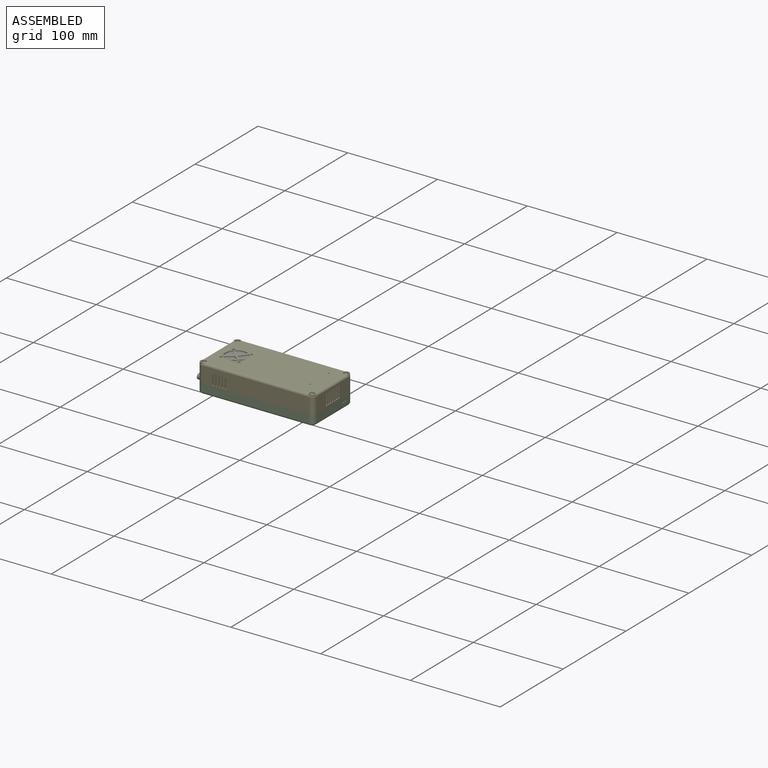
[diagram: assembled view]
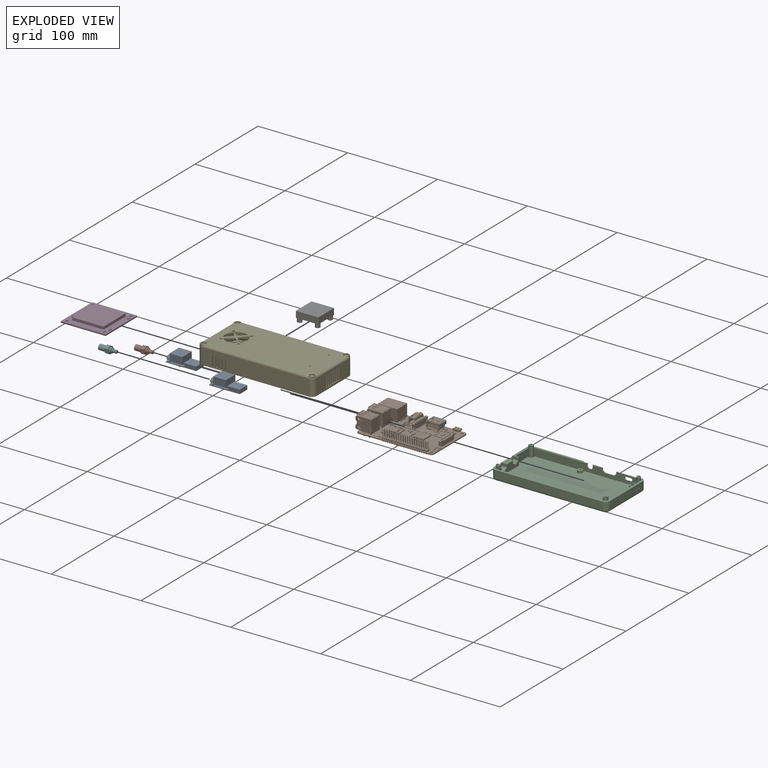
[diagram: exploded view]
GUIDED TOUR — MATED ASSEMBLY (Onshape document 8c34c1c767a49570ccc6db5e, AutoMate assembly 8c34c1c767a49570ccc6db5e_f70d51597f26a37813e1e88d_69d6b03f9e97eedcf7e0efff_default)

This assembly has 9 components, labeled P0..P8 below (a component is one placed occurrence of a part; the same part can appear more than once), held together by 20 mates. A mate is a constraint between two components; its type names the relative motion it leaves free:
  CYLINDRICAL — leaves both rotation about and translation along the listed axis free,
  PLANAR — leaves sliding in the plane through the listed point (normal = the listed direction) and rotation about that normal free.
Axis/direction vectors are unit vectors and 'through' points are millimeter coordinates, both in the assembly's world frame.

MATES
  1. PLANAR "Planar 13": P6 <-> P4, direction (0.000, 0.000, 1.000) through (-70.12, -5.59, 26.29) mm
  2. PLANAR "Planar 11": P4 <-> P2, direction (0.000, -1.000, 0.000) through (-25.44, -36.59, 16.27) mm
  3. PLANAR "Planar 12": P4 <-> P2, direction (1.000, 0.000, 0.000) through (37.38, -31.59, 16.17) mm
  4. CYLINDRICAL "Cylindrical 6": P6 <-> P4, axis (0.000, 0.000, 1.000) through (-60.12, -15.59, 17.20) mm
  5. CYLINDRICAL "Cylindrical 4": P7 <-> P8, axis (-1.000, 0.000, 0.000) through (-79.45, -6.59, 6.64) mm
  6. PLANAR "Planar 14": P4 <-> P2, direction (0.000, 0.000, -1.000) through (-7.43, -21.85, 7.29) mm
  7. PLANAR "Planar 1": P1 <-> P0, direction (-1.000, 0.000, 0.000) through (-46.70, -21.19, 4.09) mm
  8. PLANAR "Planar 4": P1 <-> P2, direction (0.000, 0.000, 1.000) through (-12.12, 22.41, 1.29) mm
  9. CYLINDRICAL "Cylindrical 3": P0 <-> P5, axis (1.000, 0.000, 0.000) through (-74.30, -24.59, 6.64) mm
  10. CYLINDRICAL "Cylindrical 2": P2 <-> P1, axis (0.000, 0.000, 1.000) through (-31.12, -30.09, 1.29) mm
  11. CYLINDRICAL "Cylindrical 5": P4 <-> P3, axis (0.000, 0.000, -1.000) through (-23.12, -23.59, 22.54) mm
  12. PLANAR "Planar 9": P8 <-> P7, direction (-1.000, 0.000, 0.000) through (-83.70, -6.59, 6.66) mm
  13. PLANAR "Planar 7": P8 <-> P1, direction (0.000, -1.000, 0.000) through (-55.50, -12.59, 6.36) mm
  14. CYLINDRICAL "Cylindrical 1": P2 <-> P1, axis (0.000, 0.000, 1.000) through (26.88, 18.91, 1.29) mm
  15. PLANAR "Planar 3": P0 <-> P1, direction (0.000, -1.000, 0.000) through (-55.50, -30.59, 6.36) mm
  16. PLANAR "Planar 10": P3 <-> P4, direction (0.000, 0.000, 1.000) through (-19.62, -2.59, 22.54) mm
  17. PLANAR "Planar 6": P8 <-> P0, direction (-1.000, 0.000, 0.000) through (-62.70, -6.72, 7.51) mm
  18. PLANAR "Planar 5": P0 <-> P8, direction (0.000, 0.000, 1.000) through (-62.70, -24.59, 8.59) mm
  19. PLANAR "Planar 2": P0 <-> P1, direction (0.000, 0.000, 1.000) through (-55.70, -24.59, 8.59) mm
  20. PLANAR "Planar 8": P0 <-> P5, direction (-1.000, 0.000, 0.000) through (-83.70, -26.13, 9.14) mm

ASSEMBLY ORDER
  1. P0 — the base component [order heuristic]
  2. P8 — core [order heuristic]
  3. P7 — core [order heuristic]
  4. P5 — core [order heuristic]
  5. P4 [order verified]
  6. P1 — core [order heuristic]
  7. P2 — core [order heuristic]
  8. P3 [order verified]
  9. P6 [order verified]
(P4 verified with a relaxed clearance tolerance: the source model stores slight part interference there.)
Order-tag legend:
  [order verified] — this step's position reverses a verified removal order: the component was checked to insert without passing through the ones already placed.
  [order heuristic] — the first 6 components form the assembly's core: parts whose collision-free extraction could not be verified, listed in mate-graph order.

Of the 9 components, 2 carry the full construction recipe — the FeatureScript program that regenerates the part's solid from scratch; the rest are supplied as boundary geometry only.
Each toured component is shown spotlighted twice — in the assembled view, then in the exploded view, where a leader line traces a displaced component back to its assembled socket (saturated green if recipe-attached, orange if geometry-only; every other component desaturated gray) — followed by its recipe or geometry summary and the mates that hold it.
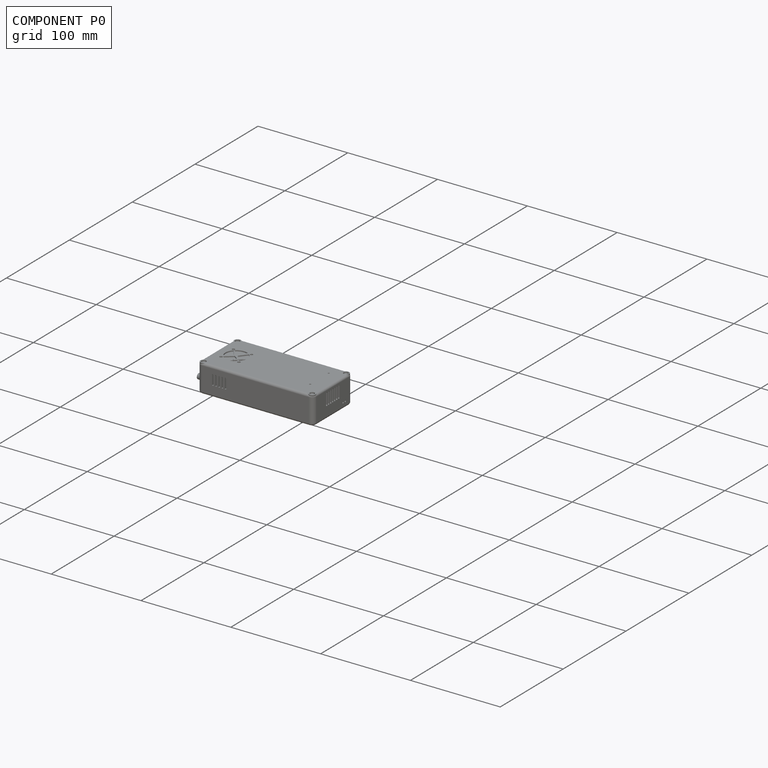
[diagram: component P0 — assembled]
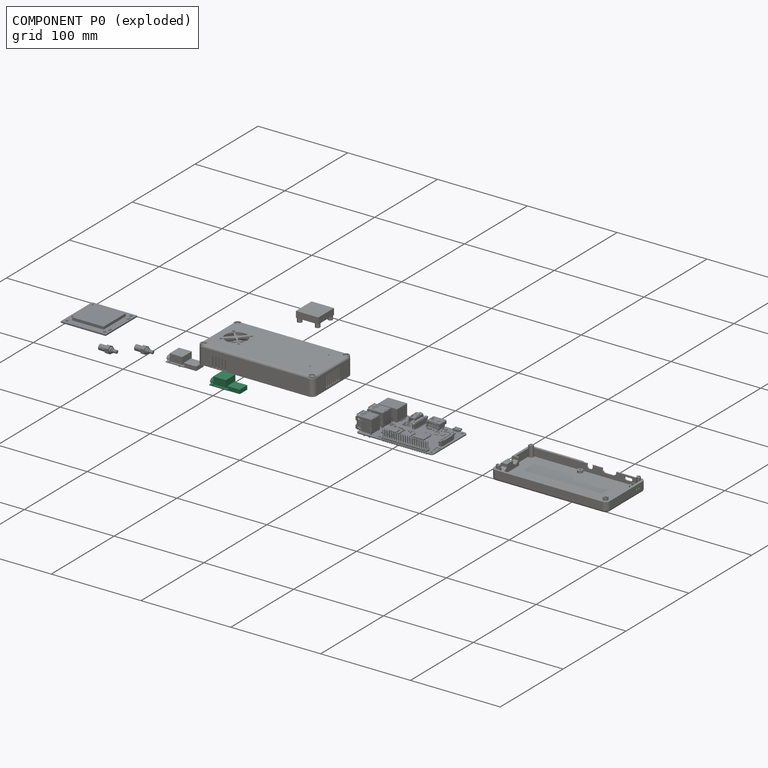
[diagram: component P0 — exploded]
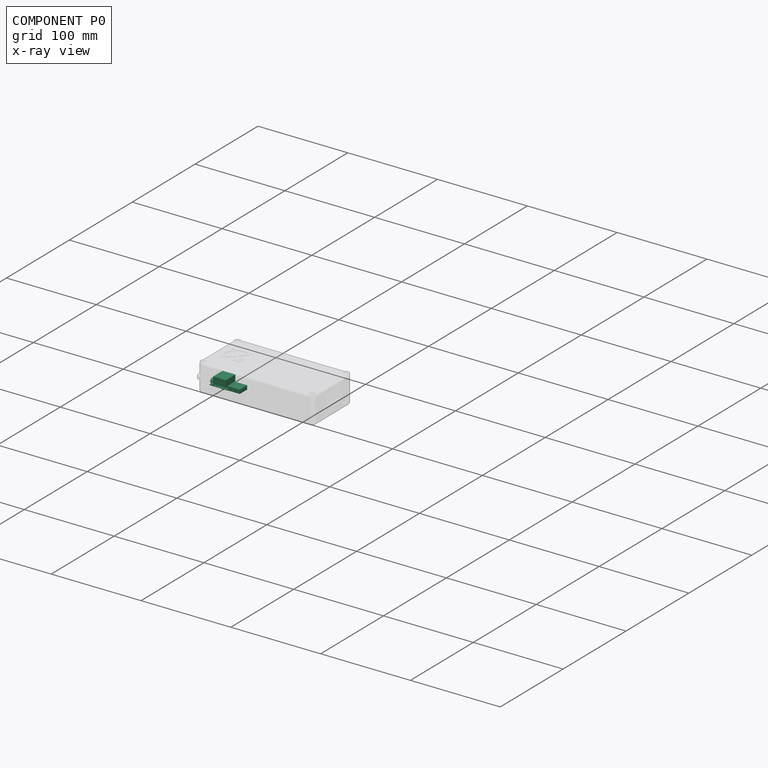
[diagram: component P0 — x-ray view]
COMPONENT P0 — recipe-attached (CADFS 00898889, mesh-verified: the recipe's output STEP matches this component's geometry to below the mesh-comparison resolution (tessellation chordal tolerance ~0.0602 mm)).
Held by: PLANAR mate "Planar 1" to P1; CYLINDRICAL mate "Cylindrical 3" to P5; PLANAR mate "Planar 3" to P1; PLANAR mate "Planar 6" to P8; PLANAR mate "Planar 5" to P8; PLANAR mate "Planar 2" to P1; PLANAR mate "Planar 8" to P5.
Construction recipe (FeatureScript — the CAD program that rebuilds this solid; sketch coordinates are in the units given by the * unit suffixes, e.g. mm):

FeatureScript 1511;
import(path : "onshape/std/geometry.fs", version : "1511.0");
import(path : "onshape/std/common.fs", version : "1511.0");
const mm = millimeter;
const VERTEX = EntityType.VERTEX;
const EDGE = EntityType.EDGE;
const FACE = EntityType.FACE;
const BODY = EntityType.BODY;
function v(x, y){return vector(x, y);}
function OD(order){return orderDisambiguation(order);}
function OSD(set){return originalSetDisambiguation(set);}
function TD(topology){return topologyDisambiguation(topology);}
function TDD(query){return trueDependencyDisambiguation(query);}
function sQuery(a, b, c) {return sketchEntityQuery(a, b, c);}

annotation { "Feature Type Name" : "Feature", "Feature Type Description" : "" }
export const myFeature = defineFeature(function(context is Context, id is Id, definition is map)
    precondition{}
    {
        {
            var Q0;
            Q0=qCreatedBy(makeId("Top.planeOp"),FACE);
            var sketch = newSketch(context, id + "F0", { "sketchPlane" : qUnion([Q0])});
            skLineSegment(sketch, "E0.bottom", {"start": v(10.2, -8.1) * mm, "end": v(-10.2, -8.1) * mm});
            skLineSegment(sketch, "E0.top", {"start": v(10.2, 8.1) * mm, "end": v(-10.2, 8.1) * mm});
            skLineSegment(sketch, "E0.left", {"start": v(10.2, -8.1) * mm, "end": v(10.2, 8.1) * mm});
            skLineSegment(sketch, "E0.right", {"start": v(-10.2, -8.1) * mm, "end": v(-10.2, 8.1) * mm});
            skPoint(sketch, "E0.middle", {"position": v(0, 0) * mm});
            skSolve(sketch);
        }
        {
            var Q0;
            Q0=makeQuery(id+"F0.imprint","IMPRINT",FACE,{"disambiguationData":[TD([[makeQuery(id+"F0.imprint","IMPRINT",EDGE,{"derivedFrom":sQuery(id+"F0.wireOp",EDGE,"E0.bottom")}),-1.0]])]});
            extrude(context, id + "F1", {"entities" : qUnion([Q0]), "oppositeDirection" : true, "depth" : 1 * mm});
        }
        {
            var Q0;
            Q0=makeQuery(id+"F1.opExtrude","SWEPT_FACE",FACE,{"disambiguationData":[OSD([sQuery(id+"F0.wireOp",EDGE,"E0.right")])]});
            var sketch = newSketch(context, id + "F2", { "sketchPlane" : qUnion([Q0])});
            skLineSegment(sketch, "E1.bottom", {"start": v(6, -2.05) * mm, "end": v(-6, -2.05) * mm});
            skLineSegment(sketch, "E1.top", {"start": v(6, 2.45) * mm, "end": v(-6, 2.45) * mm});
            skLineSegment(sketch, "E1.left", {"start": v(6, -2.05) * mm, "end": v(6, 2.45) * mm});
            skLineSegment(sketch, "E1.right", {"start": v(-6, -2.05) * mm, "end": v(-6, 2.45) * mm});
            skPoint(sketch, "E1.middle", {"position": v(0, 0.2) * mm});
            skSolve(sketch);
        }
        {
            var Q0;
            Q0=qSketchRegion(id+"F2",true);
            extrude(context, id + "F3", {"entities" : qUnion([Q0]), "operationType" : NewBodyOperationType.ADD, "depth" : 12 * mm, "hasSecondDirection" : true, "secondDirectionOppositeDirection" : true, "secondDirectionDepth" : 2 * mm});
        }
        {
            var Q0;
            Q0=makeQuery(id+"F1.opExtrude","SWEPT_FACE",FACE,{"disambiguationData":[OSD([sQuery(id+"F0.wireOp",EDGE,"E0.left")])]});
            var sketch = newSketch(context, id + "F4", { "sketchPlane" : qUnion([Q0])});
            skLineSegment(sketch, "E2.top", {"start": v(-2.35, -2) * mm, "end": v(2.35, -2) * mm});
            skLineSegment(sketch, "E2.left", {"start": v(-2.35, 0) * mm, "end": v(-2.35, -2) * mm});
            skLineSegment(sketch, "E2.right", {"start": v(2.35, 0) * mm, "end": v(2.35, -2) * mm});
            skLineSegment(sketch, "E3", {"start": v(0, 0) * mm, "end": v(0, 1.3) * mm, "construction": true});
            skPoint(sketch, "E3.endSnap0", {"position": v(0, 0) * mm});
            skLineSegment(sketch, "E4", {"start": v(-2.35, 0) * mm, "end": v(-3.37, 0) * mm});
            skLineSegment(sketch, "E5", {"start": v(2.35, 0) * mm, "end": v(3.38, 0) * mm});
            skArc(sketch, "E6", {"start": v(3.38, 0) * mm, "mid": v(2.88, 1.76) * mm, "end": v(1.55, 3) * mm});
            skLineSegment(sketch, "E7", {"start": v(-1.55, 3) * mm, "end": v(1.55, 3) * mm});
            skArc(sketch, "E8.trimOffspring", {"start": v(-1.55, 3) * mm, "mid": v(-2.88, 1.76) * mm, "end": v(-3.37, 0) * mm});
            skSolve(sketch);
        }
        {
            var Q0;
            {var subQ0=sQuery(id+"F4.wireOp",EDGE,"E2.top");Q0=makeQuery(id+"F4.imprint","IMPRINT",FACE,{"disambiguationData":[TD([[makeQuery(id+"F4.imprint","IMPRINT",EDGE,{"derivedFrom":subQ0}),1.0]])]});}
            var Q1;
            {var subQ0=sQuery(id+"F4.wireOp",EDGE,"E2.left");var subQ1=sQuery(id+"F0.wireOp",EDGE,"E0.left");var subQ4=makeQuery(id+"F1.opExtrude","CAP_EDGE",EDGE,{"disambiguationData":[OSD([subQ1])],"isStart":false});var subQ5=makeQuery(id+"F4.imprint","INTERSECT",VERTEX,{"derivedFrom":[subQ4,subQ0]});Q1=makeQuery(id+"F4.imprint","IMPRINT",FACE,{"disambiguationData":[TD([[makeQuery(id+"F4.imprint","IMPRINT",EDGE,{"disambiguationData":[TD([[subQ5,-1.0]])],"derivedFrom":subQ4}),1.0]])]});}
            var Q2;
            {var subQ1=sQuery(id+"F4.wireOp",EDGE,"E4");Q2=makeQuery(id+"F4.imprint","IMPRINT",FACE,{"disambiguationData":[TD([[makeQuery(id+"F4.imprint","IMPRINT",EDGE,{"derivedFrom":subQ1}),1.0]])]});}
            extrude(context, id + "F5", {"entities" : qUnion([Q0, Q1, Q2]), "operationType" : NewBodyOperationType.ADD, "depth" : 2.6 * mm, "hasSecondDirection" : true, "secondDirectionOppositeDirection" : true, "secondDirectionDepth" : (6.4 - 2.6) * mm});
        }
        {
            var Q0;
            {var subQ0=sQuery(id+"F4.wireOp",EDGE,"E6");var subQ1=sQuery(id+"F4.wireOp",EDGE,"E7");var subQ2=sQuery(id+"F4.wireOp",EDGE,"E8.trimOffspring");Q0=makeQuery(id+"F5.boolean.opBoolean","SPLIT",FACE,{"disambiguationData":[TD([makeQuery(id+"F5.opExtrude","SWEPT_FACE",FACE,{"disambiguationData":[OSD([subQ0])]})])],"derivedFrom":makeQuery(id+"F5.opExtrude","CAP_FACE",FACE,{"disambiguationData":[OSD([sQuery(id+"F4.wireOp",EDGE,"E2.top"),sQuery(id+"F4.wireOp",EDGE,"E2.left"),sQuery(id+"F4.wireOp",EDGE,"E2.right"),sQuery(id+"F4.wireOp",EDGE,"E4"),sQuery(id+"F4.wireOp",EDGE,"E5"),subQ0,subQ1,subQ2])],"isStart":true})});}
            var sketch = newSketch(context, id + "F6", { "sketchPlane" : qUnion([Q0])});
            skCircle(sketch, "E9", {"center": v(0, 0.5) * mm, "radius": 0.45 * mm});
            skLineSegment(sketch, "E10.0.0", {"start": v(2.35, 0) * mm, "end": v(2.35, -2) * mm, "construction": true});
            skLineSegment(sketch, "E10.0.1", {"start": v(2.35, -2) * mm, "end": v(-2.35, -2) * mm, "construction": true});
            skLineSegment(sketch, "E10.0.2", {"start": v(-2.35, -2) * mm, "end": v(-2.35, 0) * mm, "construction": true});
            skLineSegment(sketch, "E10.0.3", {"start": v(-2.35, 0) * mm, "end": v(-3.38, 0) * mm, "construction": true});
            skArc(sketch, "E10.0.4", {"start": v(-3.38, 0) * mm, "mid": v(-2.88, 1.76) * mm, "end": v(-1.55, 3) * mm, "construction": true});
            skLineSegment(sketch, "E10.0.5", {"start": v(-1.55, 3) * mm, "end": v(1.55, 3) * mm, "construction": true});
            skArc(sketch, "E10.0.6", {"start": v(1.55, 3) * mm, "mid": v(2.88, 1.76) * mm, "end": v(3.37, 0) * mm, "construction": true});
            skLineSegment(sketch, "E10.0.7", {"start": v(3.37, 0) * mm, "end": v(2.35, 0) * mm, "construction": true});
            skCircle(sketch, "E11", {"center": v(0, 0.5) * mm, "radius": 1.73 * mm, "construction": true});
            skLineSegment(sketch, "E12", {"start": v(2.4, 0.5) * mm, "end": v(-2.45, 0.5) * mm, "construction": true});
            skSolve(sketch);
        }
        {
            var Q0;
            Q0=qSketchRegion(id+"F6",true);
            extrude(context, id + "F7", {"entities" : qUnion([Q0]), "operationType" : NewBodyOperationType.ADD, "depth" : 3 * mm});
        }
        {
            var Q0;
            Q0=makeQuery(id+"F1.opExtrude","CAP_FACE",FACE,{"disambiguationData":[OSD([sQuery(id+"F0.wireOp",EDGE,"E0.bottom"),sQuery(id+"F0.wireOp",EDGE,"E0.top"),sQuery(id+"F0.wireOp",EDGE,"E0.left"),sQuery(id+"F0.wireOp",EDGE,"E0.right")])],"isStart":true});
            var sketch = newSketch(context, id + "F8", { "sketchPlane" : qUnion([Q0])});
            skLineSegment(sketch, "E13.bottom", {"start": v(-9.1, 2.05) * mm, "end": v(-3.5, 2.05) * mm});
            skLineSegment(sketch, "E13.top", {"start": v(-9.1, -3.55) * mm, "end": v(-3.5, -3.55) * mm});
            skLineSegment(sketch, "E13.left", {"start": v(-9.1, 2.05) * mm, "end": v(-9.1, -3.55) * mm});
            skLineSegment(sketch, "E13.right", {"start": v(-3.5, 2.05) * mm, "end": v(-3.5, -3.55) * mm});
            skSolve(sketch);
        }
        {
            var Q0;
            Q0=qSketchRegion(id+"F8",true);
            extrude(context, id + "F9", {"entities" : qUnion([Q0]), "operationType" : NewBodyOperationType.ADD, "depth" : .8 * mm});
        }
        {
            var Q0;
            Q0=makeQuery(id+"F1.opExtrude","CAP_FACE",FACE,{"disambiguationData":[OSD([sQuery(id+"F0.wireOp",EDGE,"E0.bottom"),sQuery(id+"F0.wireOp",EDGE,"E0.top"),sQuery(id+"F0.wireOp",EDGE,"E0.left"),sQuery(id+"F0.wireOp",EDGE,"E0.right")])],"isStart":true});
            var sketch = newSketch(context, id + "F10", { "sketchPlane" : qUnion([Q0])});
            skLineSegment(sketch, "E14.bottom", {"start": v(0.15, -2.1) * mm, "end": v(4.15, -2.1) * mm});
            skLineSegment(sketch, "E14.top", {"start": v(0.15, -6.1) * mm, "end": v(4.15, -6.1) * mm});
            skLineSegment(sketch, "E14.left", {"start": v(0.15, -2.1) * mm, "end": v(0.15, -6.1) * mm});
            skLineSegment(sketch, "E14.right", {"start": v(4.15, -2.1) * mm, "end": v(4.15, -6.1) * mm});
            skSolve(sketch);
        }
        {
            var Q0;
            Q0=qSketchRegion(id+"F10",true);
            extrude(context, id + "F11", {"entities" : qUnion([Q0]), "operationType" : NewBodyOperationType.ADD, "depth" : .8 * mm});
        }
        {
            var Q0;
            Q0=makeQuery(id+"F1.opExtrude","CAP_FACE",FACE,{"disambiguationData":[OSD([sQuery(id+"F0.wireOp",EDGE,"E0.bottom"),sQuery(id+"F0.wireOp",EDGE,"E0.top"),sQuery(id+"F0.wireOp",EDGE,"E0.left"),sQuery(id+"F0.wireOp",EDGE,"E0.right")])],"isStart":true});
            var sketch = newSketch(context, id + "F12", { "sketchPlane" : qUnion([Q0])});
            skLineSegment(sketch, "E15.bottom", {"start": v(-6.4, 5.6) * mm, "end": v(-4.4, 5.6) * mm});
            skLineSegment(sketch, "E15.top", {"start": v(-6.4, 4.35) * mm, "end": v(-4.4, 4.35) * mm});
            skLineSegment(sketch, "E15.left", {"start": v(-6.4, 5.6) * mm, "end": v(-6.4, 4.35) * mm});
            skLineSegment(sketch, "E15.right", {"start": v(-4.4, 5.6) * mm, "end": v(-4.4, 4.35) * mm});
            skSolve(sketch);
        }
        {
            var Q0;
            Q0=qSketchRegion(id+"F12",true);
            extrude(context, id + "F13", {"entities" : qUnion([Q0]), "operationType" : NewBodyOperationType.ADD, "depth" : 1.25 * mm});
        }
        {
            var Q0;
            Q0=makeQuery(id+"F12.imprint","IMPRINT",FACE,{"disambiguationData":[TD([[makeQuery(id+"F12.imprint","IMPRINT",EDGE,{"derivedFrom":sQuery(id+"F12.wireOp",EDGE,"E15.bottom")}),1.0]])]});
            var sketch = newSketch(context, id + "F14", { "sketchPlane" : qUnion([Q0])});
            skLineSegment(sketch, "E16.bottom", {"start": v(7.4, 4.6) * mm, "end": v(6.15, 4.6) * mm});
            skLineSegment(sketch, "E16.top", {"start": v(7.4, 7.6) * mm, "end": v(6.15, 7.6) * mm});
            skLineSegment(sketch, "E16.left", {"start": v(7.4, 4.6) * mm, "end": v(7.4, 7.6) * mm});
            skLineSegment(sketch, "E16.right", {"start": v(6.15, 4.6) * mm, "end": v(6.15, 7.6) * mm});
            skSolve(sketch);
        }
        {
            var Q0;
            Q0=qSketchRegion(id+"F14",true);
            extrude(context, id + "F15", {"entities" : qUnion([Q0]), "operationType" : NewBodyOperationType.ADD, "depth" : 1 * mm});
        }
        {
            var Q0;
            Q0=makeQuery(id+"F1.opExtrude","CAP_FACE",FACE,{"disambiguationData":[OSD([sQuery(id+"F0.wireOp",EDGE,"E0.bottom"),sQuery(id+"F0.wireOp",EDGE,"E0.top"),sQuery(id+"F0.wireOp",EDGE,"E0.left"),sQuery(id+"F0.wireOp",EDGE,"E0.right")])],"isStart":false});
            var sketch = newSketch(context, id + "F16", { "sketchPlane" : qUnion([Q0])});
            skLineSegment(sketch, "E17.bottom", {"start": v(1.55, -5.1) * mm, "end": v(-0.45, -5.1) * mm});
            skLineSegment(sketch, "E17.top", {"start": v(1.55, -3.85) * mm, "end": v(-0.45, -3.85) * mm});
            skLineSegment(sketch, "E17.left", {"start": v(1.55, -5.1) * mm, "end": v(1.55, -3.85) * mm});
            skLineSegment(sketch, "E17.right", {"start": v(-0.45, -5.1) * mm, "end": v(-0.45, -3.85) * mm});
            skLineSegment(sketch, "E18.bottom", {"start": v(-2.65, -2.1) * mm, "end": v(-3.9, -2.1) * mm});
            skLineSegment(sketch, "E18.top", {"start": v(-2.65, -0.1) * mm, "end": v(-3.9, -0.1) * mm});
            skLineSegment(sketch, "E18.left", {"start": v(-2.65, -2.1) * mm, "end": v(-2.65, -0.1) * mm});
            skLineSegment(sketch, "E18.right", {"start": v(-3.9, -2.1) * mm, "end": v(-3.9, -0.1) * mm});
            skLineSegment(sketch, "E19.bottom", {"start": v(-0.15, 5.1) * mm, "end": v(-1.4, 5.1) * mm});
            skLineSegment(sketch, "E19.top", {"start": v(-0.15, 7.1) * mm, "end": v(-1.4, 7.1) * mm});
            skLineSegment(sketch, "E19.left", {"start": v(-0.15, 5.1) * mm, "end": v(-0.15, 7.1) * mm});
            skLineSegment(sketch, "E19.right", {"start": v(-1.4, 5.1) * mm, "end": v(-1.4, 7.1) * mm});
            skSolve(sketch);
        }
        {
            var Q0;
            Q0=qSketchRegion(id+"F16",true);
            extrude(context, id + "F17", {"entities" : qUnion([Q0]), "operationType" : NewBodyOperationType.ADD, "depth" : 1.25 * mm});
        }
        {
            var Q0;
            Q0=makeQuery(id+"F1.opExtrude","CAP_FACE",FACE,{"disambiguationData":[OSD([sQuery(id+"F0.wireOp",EDGE,"E0.bottom"),sQuery(id+"F0.wireOp",EDGE,"E0.top"),sQuery(id+"F0.wireOp",EDGE,"E0.left"),sQuery(id+"F0.wireOp",EDGE,"E0.right")])],"isStart":false});
            var sketch = newSketch(context, id + "F18", { "sketchPlane" : qUnion([Q0])});
            skLineSegment(sketch, "E20.bottom", {"start": v(-3.35, -7.2) * mm, "end": v(-4.95, -7.2) * mm});
            skLineSegment(sketch, "E20.top", {"start": v(-3.35, -4.2) * mm, "end": v(-4.95, -4.2) * mm});
            skLineSegment(sketch, "E20.left", {"start": v(-3.35, -7.2) * mm, "end": v(-3.35, -4.2) * mm});
            skLineSegment(sketch, "E20.right", {"start": v(-4.95, -7.2) * mm, "end": v(-4.95, -4.2) * mm});
            skLineSegment(sketch, "E21.bottom", {"start": v(-3.1, 4.7) * mm, "end": v(-4.7, 4.7) * mm});
            skLineSegment(sketch, "E21.top", {"start": v(-3.1, 7.7) * mm, "end": v(-4.7, 7.7) * mm});
            skLineSegment(sketch, "E21.left", {"start": v(-3.1, 4.7) * mm, "end": v(-3.1, 7.7) * mm});
            skLineSegment(sketch, "E21.right", {"start": v(-4.7, 4.7) * mm, "end": v(-4.7, 7.7) * mm});
            skSolve(sketch);
        }
        {
            var Q0;
            Q0=qSketchRegion(id+"F18",true);
            extrude(context, id + "F19", {"entities" : qUnion([Q0]), "operationType" : NewBodyOperationType.ADD, "depth" : 1.15 * mm});
        }
        {
            var Q0;
            Q0=makeQuery(id+"F1.opExtrude","CAP_FACE",FACE,{"disambiguationData":[OSD([sQuery(id+"F0.wireOp",EDGE,"E0.bottom"),sQuery(id+"F0.wireOp",EDGE,"E0.top"),sQuery(id+"F0.wireOp",EDGE,"E0.left"),sQuery(id+"F0.wireOp",EDGE,"E0.right")])],"isStart":false});
            var sketch = newSketch(context, id + "F20", { "sketchPlane" : qUnion([Q0])});
            skLineSegment(sketch, "E22.bottom", {"start": v(8.3, -5.77) * mm, "end": v(4.05, -5.77) * mm});
            skLineSegment(sketch, "E22.top", {"start": v(8.3, -2.77) * mm, "end": v(4.05, -2.77) * mm});
            skLineSegment(sketch, "E22.left", {"start": v(8.3, -5.77) * mm, "end": v(8.3, -2.77) * mm});
            skLineSegment(sketch, "E22.right", {"start": v(4.05, -5.77) * mm, "end": v(4.05, -2.77) * mm});
            skSolve(sketch);
        }
        {
            var Q0;
            Q0=qSketchRegion(id+"F20",true);
            extrude(context, id + "F21", {"entities" : qUnion([Q0]), "operationType" : NewBodyOperationType.ADD, "depth" : 1.15 * mm});
        }
        {
            var Q0;
            Q0=makeQuery(id+"F9.opExtrude","CAP_FACE",FACE,{"disambiguationData":[OSD([sQuery(id+"F8.wireOp",EDGE,"E13.bottom"),sQuery(id+"F8.wireOp",EDGE,"E13.top"),sQuery(id+"F8.wireOp",EDGE,"E13.left"),sQuery(id+"F8.wireOp",EDGE,"E13.right")])],"isStart":false});
            var sketch = newSketch(context, id + "F22", { "sketchPlane" : qUnion([Q0])});
            skLineSegment(sketch, "E23.bottom", {"start": v(-7.85, 7.5) * mm, "end": v(6.4, 7.5) * mm});
            skLineSegment(sketch, "E23.top", {"start": v(-7.85, -7.5) * mm, "end": v(6.4, -7.5) * mm});
            skLineSegment(sketch, "E23.left", {"start": v(-7.85, 7.5) * mm, "end": v(-7.85, -7.5) * mm});
            skLineSegment(sketch, "E23.right", {"start": v(6.4, 7.5) * mm, "end": v(6.4, -7.5) * mm});
            skLineSegment(sketch, "E24", {"start": v(12.8, 0) * mm, "end": v(-17.3, 0) * mm, "construction": true});
            skSolve(sketch);
        }
        {
            var Q0;
            Q0=qSketchRegion(id+"F22",true);
            extrude(context, id + "F23", {"entities" : qUnion([Q0]), "operationType" : NewBodyOperationType.ADD, "depth" : 8 * mm, "offsetDistance" : 25 * mm});
        }
    });
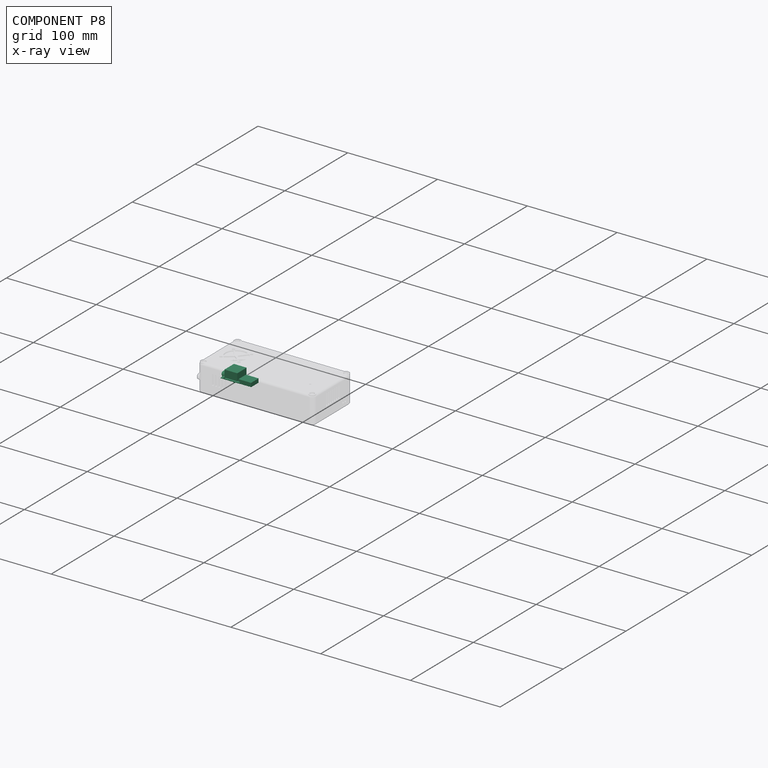
[diagram: component P8 — x-ray view]
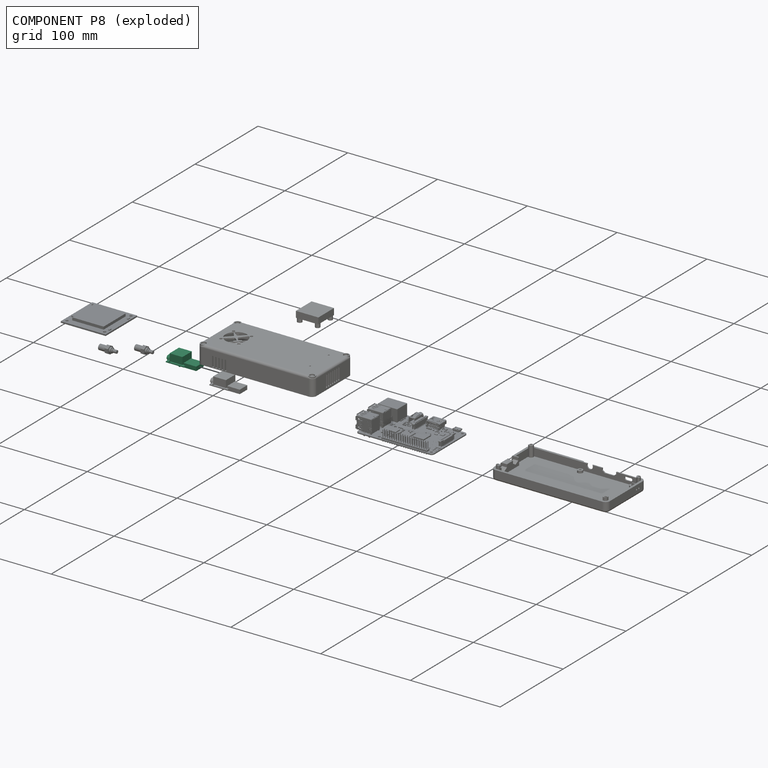
[diagram: component P8 — exploded]
COMPONENT P8 — same part as P0 (CADFS 00898889); its construction recipe is shown at P0.
Held by: CYLINDRICAL mate "Cylindrical 4" to P7; PLANAR mate "Planar 9" to P7; PLANAR mate "Planar 7" to P1; PLANAR mate "Planar 6" to P0; PLANAR mate "Planar 5" to P0.
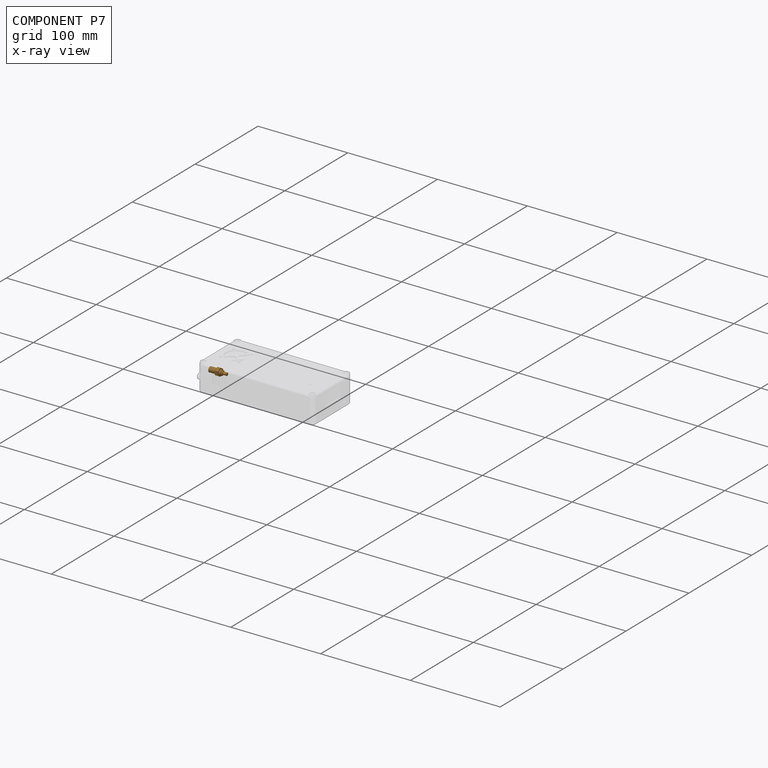
[diagram: component P7 — x-ray view]
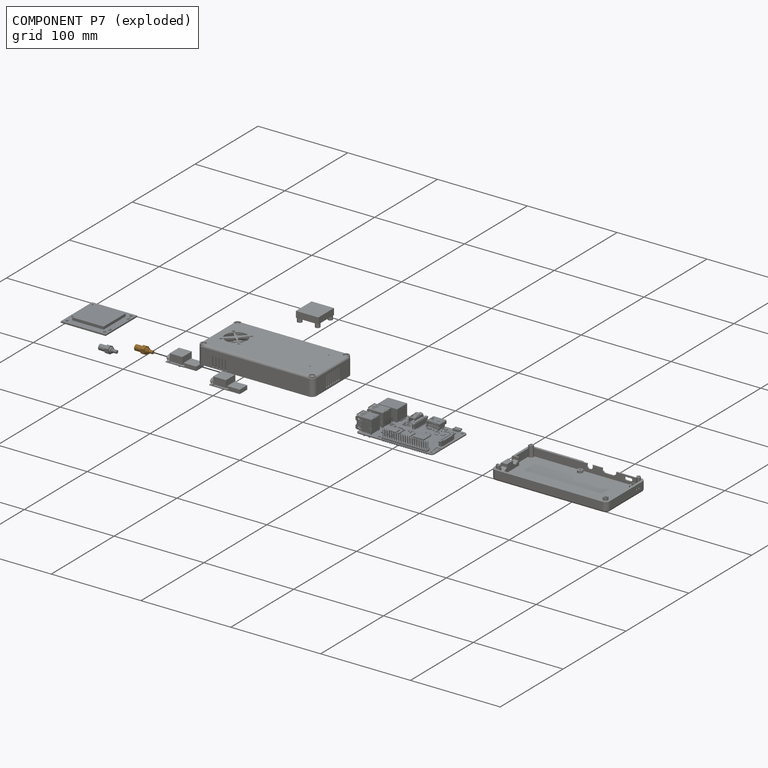
[diagram: component P7 — exploded]
COMPONENT P7 — geometry summary (no construction recipe available for this part):
  bounding box: 19.2 x 9.2 x 8.0 mm
  B-rep topology: 1 solid, 22 faces, 96 edges
  volume: 548 mm^3 (39% of its bounding box)
  symmetry: 6-fold rotationally symmetric about the x axis; mirror-symmetric across its y mid-plane, z mid-plane
Held by: CYLINDRICAL mate "Cylindrical 4" to P8; PLANAR mate "Planar 9" to P8.
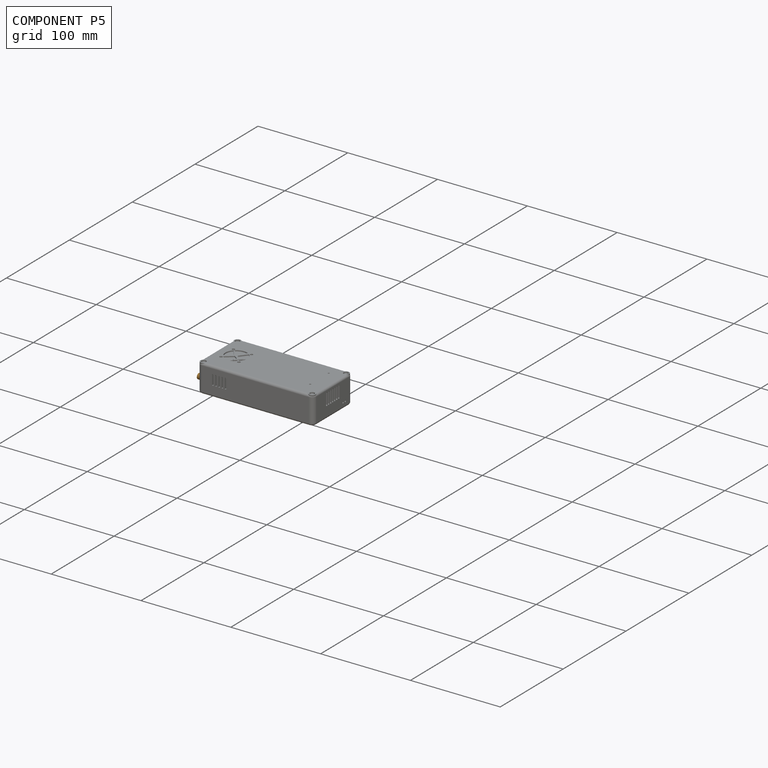
[diagram: component P5 — assembled]
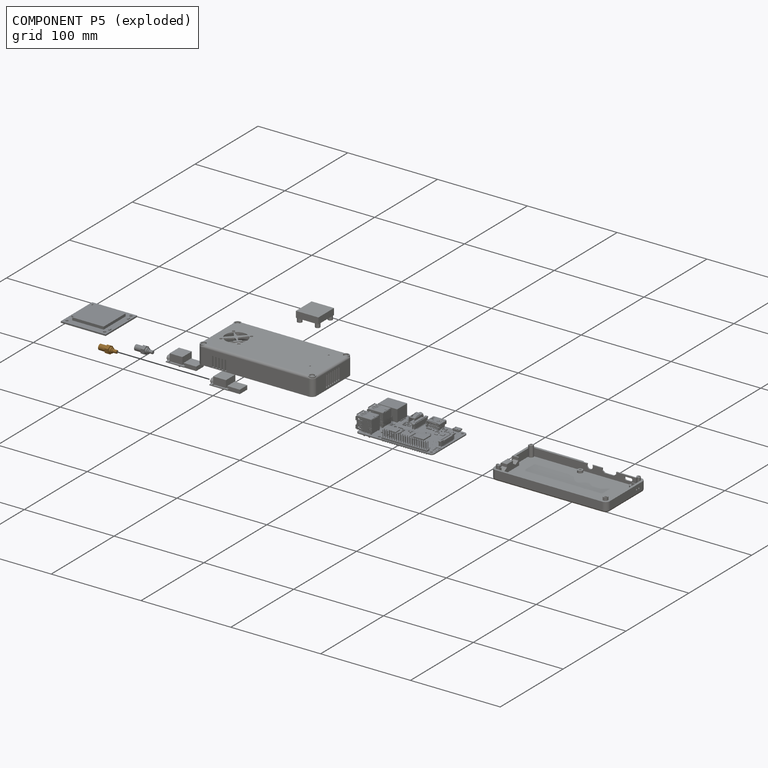
[diagram: component P5 — exploded]
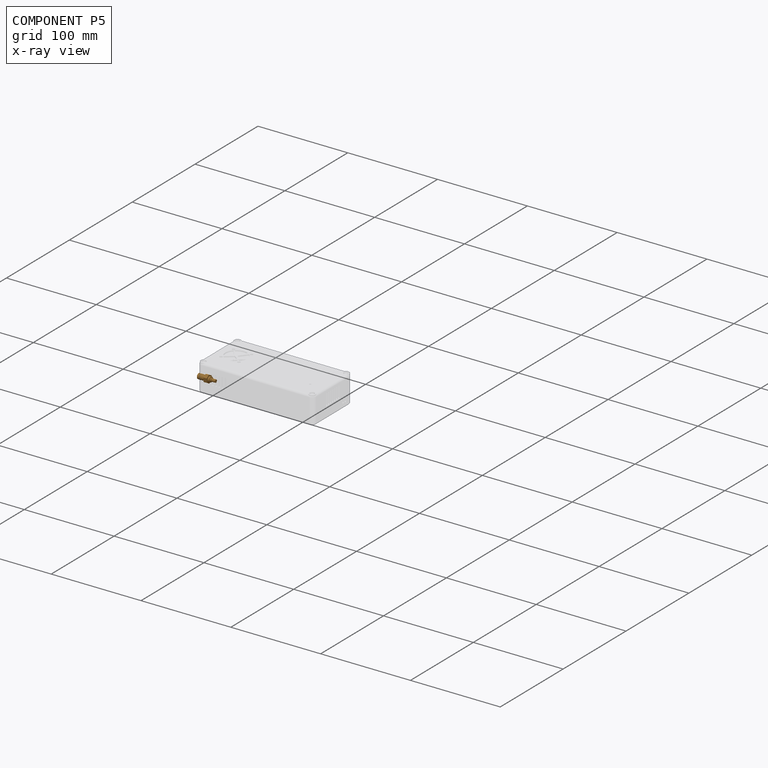
[diagram: component P5 — x-ray view]
COMPONENT P5 — geometry summary (no construction recipe available for this part):
  bounding box: 19.2 x 9.2 x 8.0 mm
  B-rep topology: 1 solid, 22 faces, 96 edges
  volume: 548 mm^3 (39% of its bounding box)
  symmetry: 6-fold rotationally symmetric about the x axis; mirror-symmetric across its y mid-plane, z mid-plane
Held by: CYLINDRICAL mate "Cylindrical 3" to P0; PLANAR mate "Planar 8" to P0.
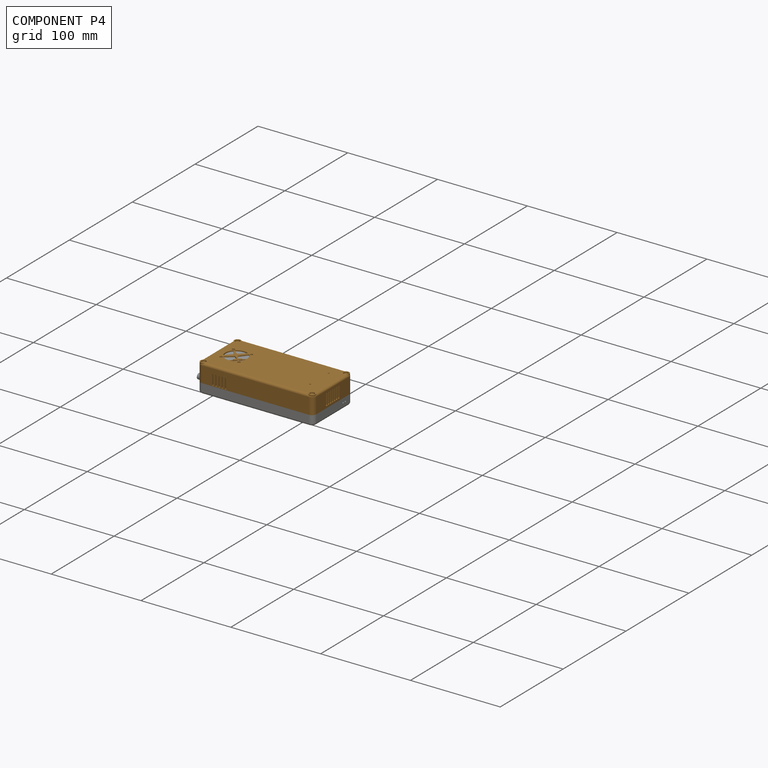
[diagram: component P4 — assembled]
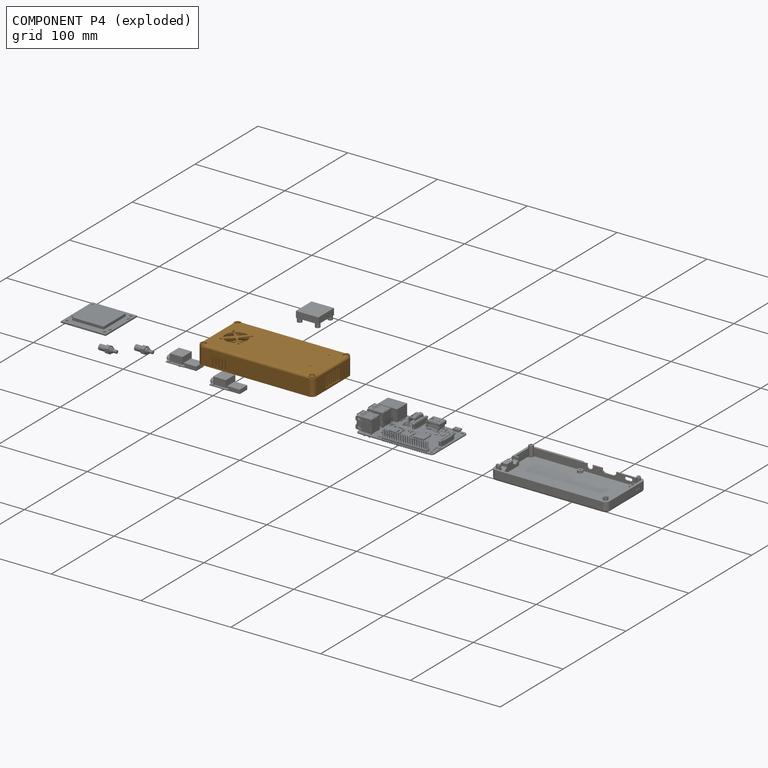
[diagram: component P4 — exploded]
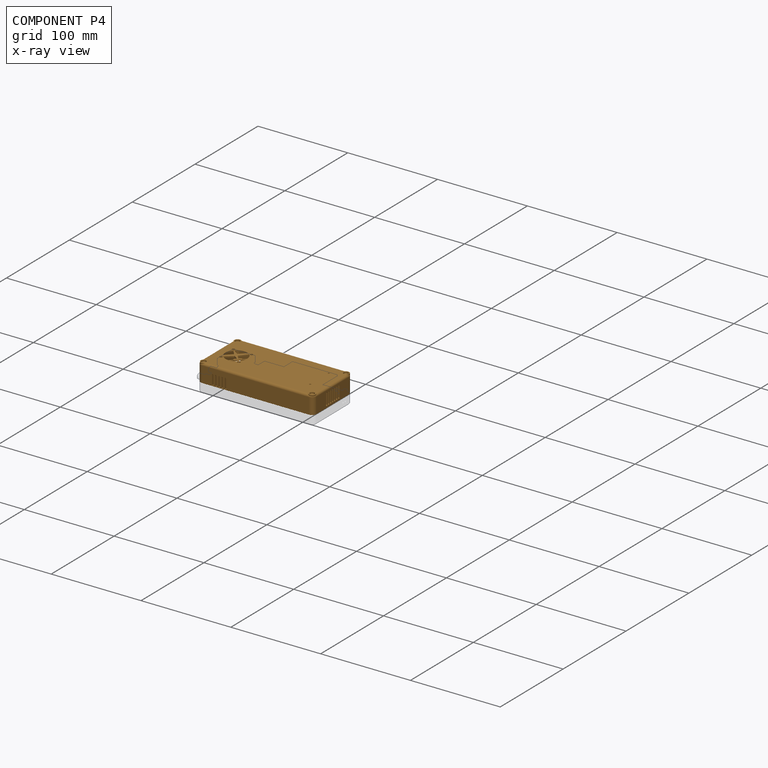
[diagram: component P4 — x-ray view]
COMPONENT P4 — geometry summary (no construction recipe available for this part):
  bounding box: 129.8 x 62.8 x 20.3 mm
  B-rep topology: 1 solid, 218 faces, 1202 edges
  volume: 33515 mm^3 (20% of its bounding box)
Held by: PLANAR mate "Planar 13" to P6; PLANAR mate "Planar 11" to P2; PLANAR mate "Planar 12" to P2; CYLINDRICAL mate "Cylindrical 6" to P6; PLANAR mate "Planar 14" to P2; CYLINDRICAL mate "Cylindrical 5" to P3; PLANAR mate "Planar 10" to P3.
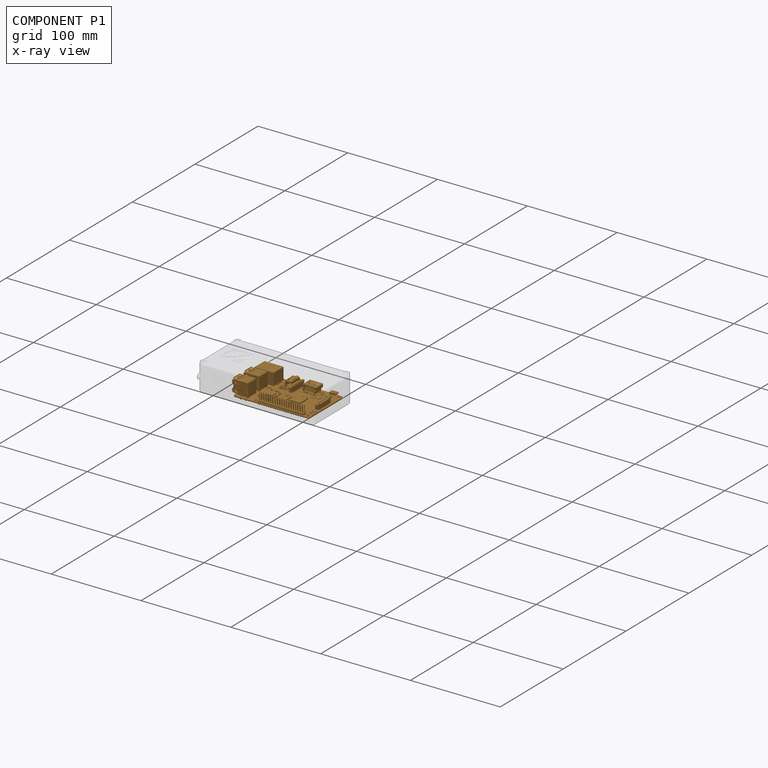
[diagram: component P1 — x-ray view]
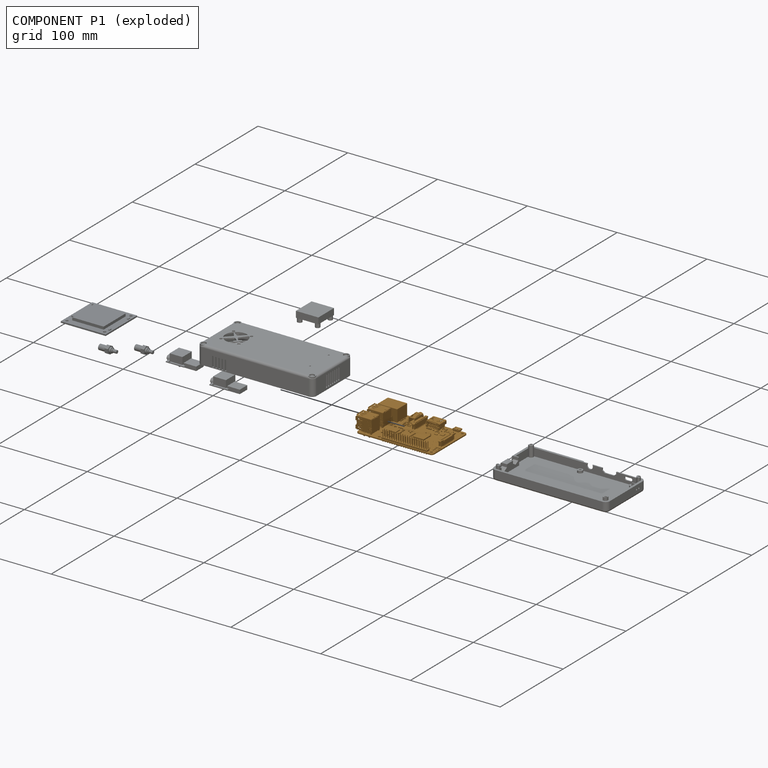
[diagram: component P1 — exploded]
COMPONENT P1 — geometry summary (no construction recipe available for this part):
  bounding box: 89.2 x 60.5 x 21.4 mm
  B-rep topology: 1 solid, 6252 faces, 35812 edges
  volume: 16628 mm^3 (14% of its bounding box)
Held by: PLANAR mate "Planar 1" to P0; PLANAR mate "Planar 4" to P2; CYLINDRICAL mate "Cylindrical 2" to P2; PLANAR mate "Planar 7" to P8; CYLINDRICAL mate "Cylindrical 1" to P2; PLANAR mate "Planar 3" to P0; PLANAR mate "Planar 2" to P0.
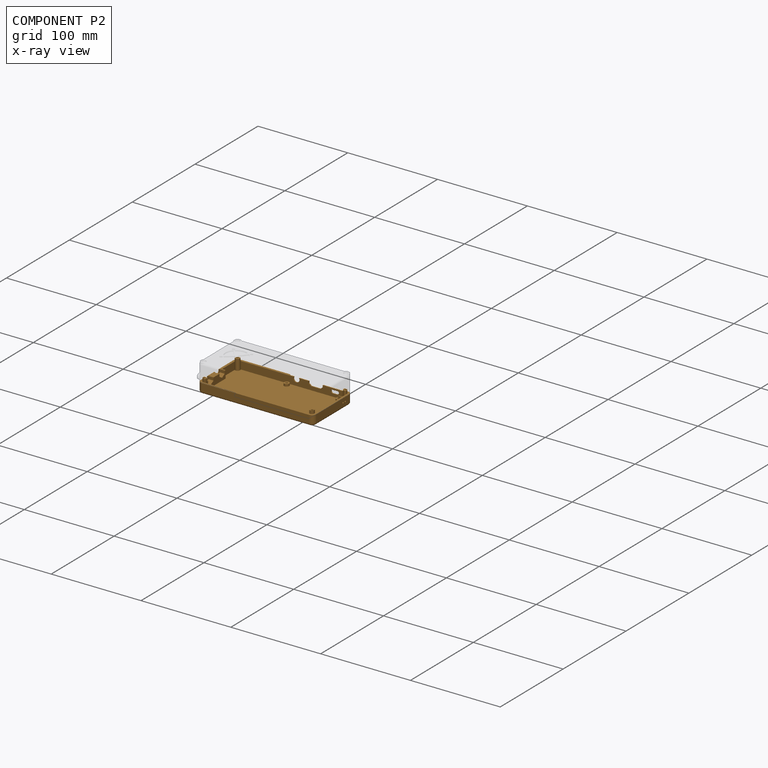
[diagram: component P2 — x-ray view]
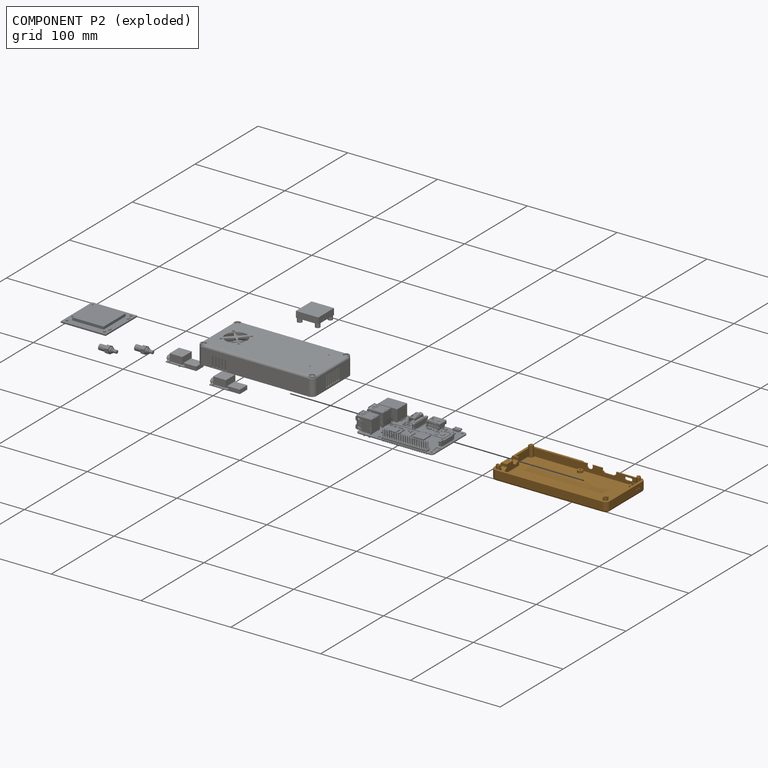
[diagram: component P2 — exploded]
COMPONENT P2 — geometry summary (no construction recipe available for this part):
  bounding box: 129.8 x 62.8 x 14.5 mm
  B-rep topology: 1 solid, 128 faces, 656 edges
  volume: 27837 mm^3 (24% of its bounding box)
Held by: PLANAR mate "Planar 11" to P4; PLANAR mate "Planar 12" to P4; PLANAR mate "Planar 14" to P4; PLANAR mate "Planar 4" to P1; CYLINDRICAL mate "Cylindrical 2" to P1; CYLINDRICAL mate "Cylindrical 1" to P1.
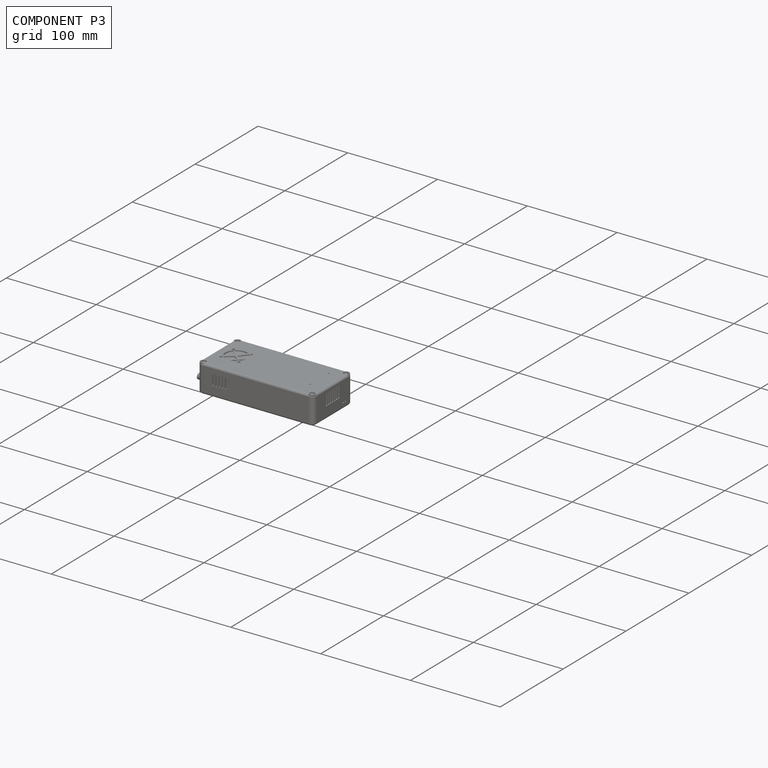
[diagram: component P3 — assembled]
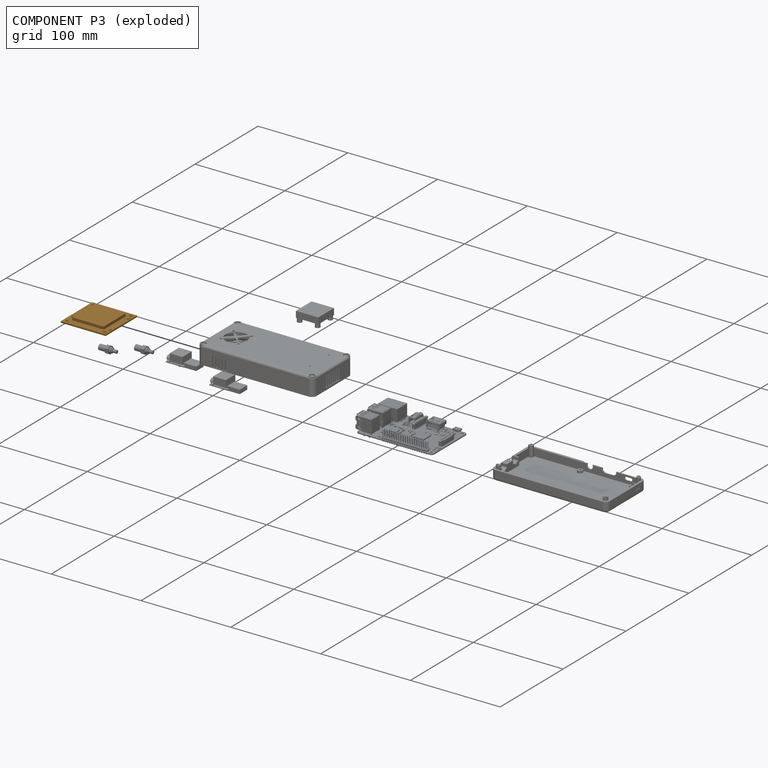
[diagram: component P3 — exploded]
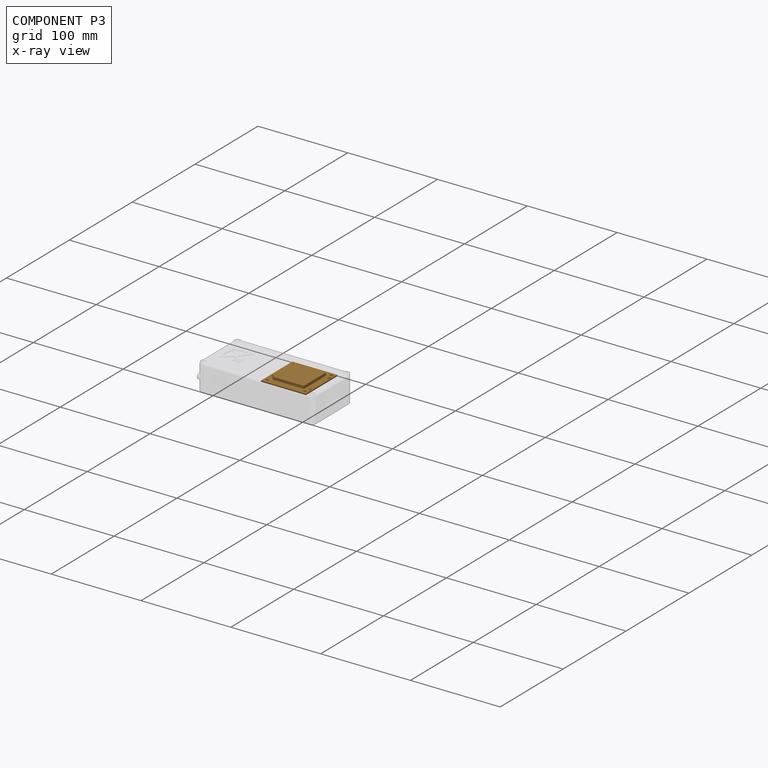
[diagram: component P3 — x-ray view]
COMPONENT P3 — geometry summary (no construction recipe available for this part):
  bounding box: 50.0 x 50.0 x 4.6 mm
  B-rep topology: 1 solid, 30 faces, 144 edges
  volume: 7643 mm^3 (66% of its bounding box)
Held by: CYLINDRICAL mate "Cylindrical 5" to P4; PLANAR mate "Planar 10" to P4.
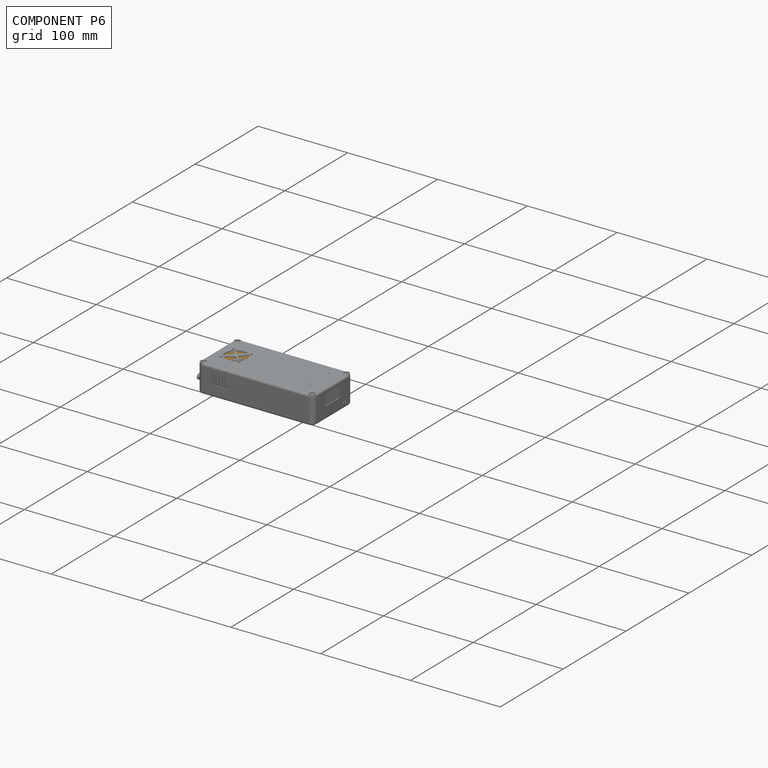
[diagram: component P6 — assembled]
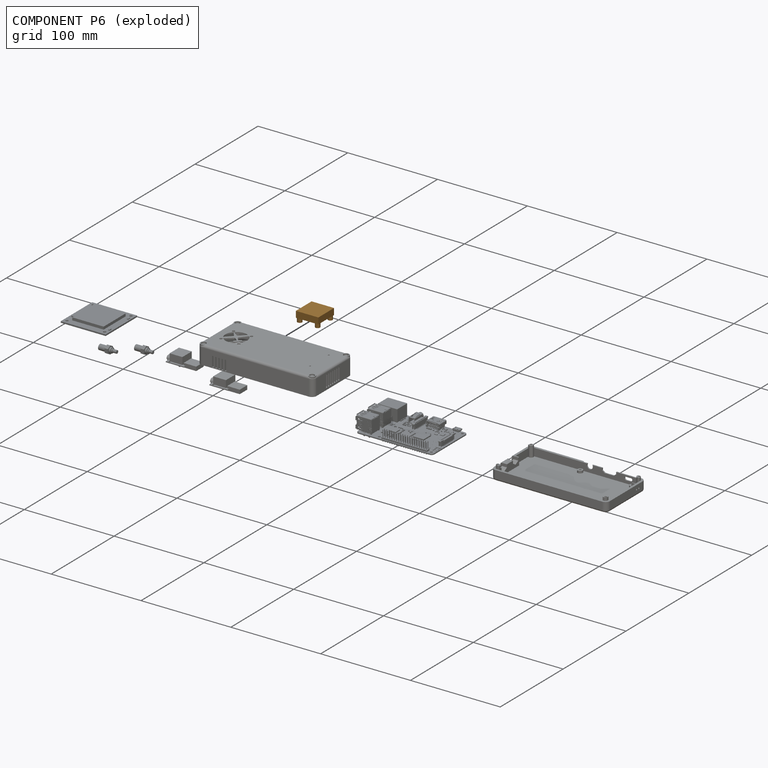
[diagram: component P6 — exploded]
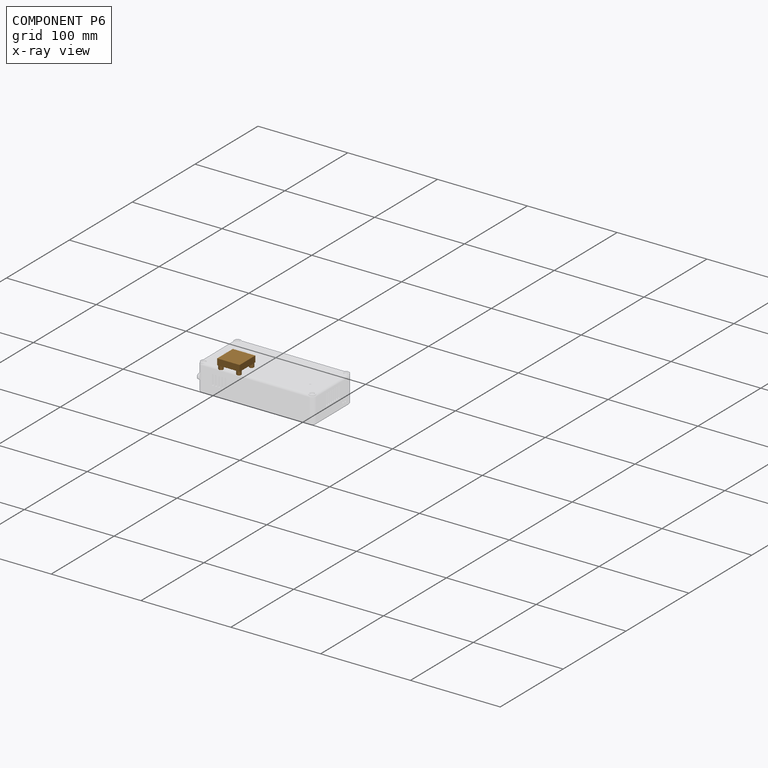
[diagram: component P6 — x-ray view]
COMPONENT P6 — geometry summary (no construction recipe available for this part):
  bounding box: 25.2 x 25.2 x 11.2 mm
  B-rep topology: 1 solid, 26 faces, 112 edges
  volume: 4723 mm^3 (67% of its bounding box)
  symmetry: 4-fold rotationally symmetric about the z axis; mirror-symmetric across its x mid-plane, y mid-plane
Held by: PLANAR mate "Planar 13" to P4; CYLINDRICAL mate "Cylindrical 6" to P4.
PROVENANCE & LICENSES
Assembly (occurrences, transforms, mates, per-part STEP geometry): AutoMate dataset, Zenodo record 7776208, CC0.
Construction recipes: CADFS (HuggingFace VladPyatov/CADFS, CC-BY-4.0, layered over the ABC dataset), FeatureScript reconstruction programs keyed by ABC model id.
Join: ABC meta listings map ABC model id -> Onshape documentId; within a shared document, parts are matched by geometric signature (bounding-box dims + volume at 0.1% relative tolerance, exact B-rep face/solid counts).
Verification: 2 of this assembly's 9 components carry a recipe attachment, and every attachment is mesh-verified: the CADFS STEP and the AutoMate member STEP were compared as meshes in their shared local frame (symmetric sampled-point-to-mesh distance); worst across the 2 attachments: below the mesh-comparison resolution (tessellation chordal tolerance ~0.0602 mm) on a 40 mm part.
Renders: orthographic iso camera (az 35 / el 25); the floor grid conveys scale (grid pitch printed in each image; no ruler). In the exploded view each component is displaced by its stored offset vector: the offsets alone carry the explosion direction (mate normal/axis signs are not orientation cues and do not encode it), and separation distances are assigned per mate-chain, not proportionally to assembly-order depth.
